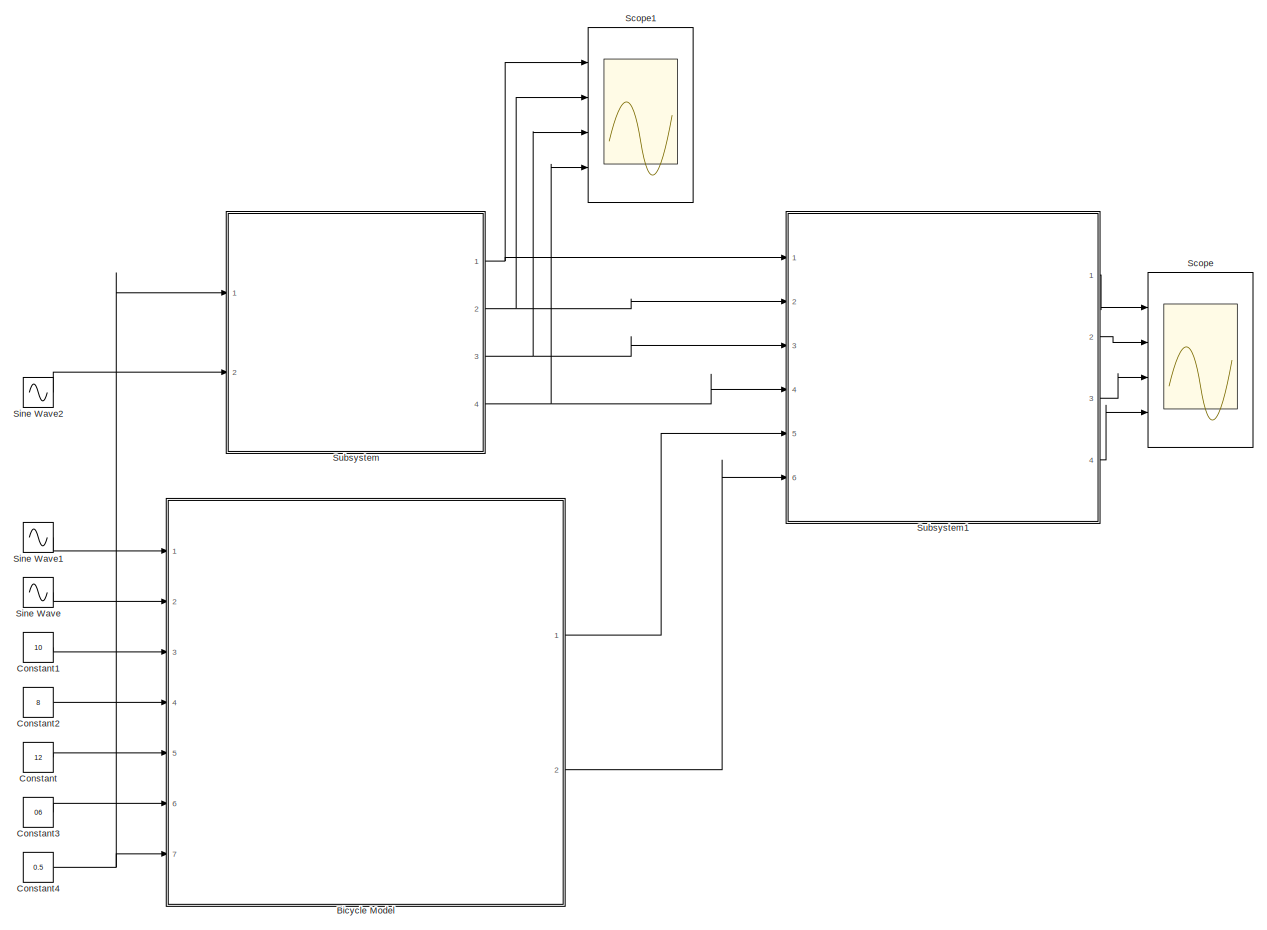
[diagram: root canvas - part 1/1, most of the canvas]
MODEL slx_4cc583ce4cd1
KIND model
CONFIG AbsTol = auto
CONFIG FixedStep = 0.001
CONFIG MaxStep = auto
CONFIG MinStep = auto
CONFIG RelTol = 1e-3
CONFIG SampleTimeConstraint = Unconstrained
CONFIG Solver = FixedStepAuto
CONFIG SolverMode = Auto
CONFIG SolverName = FixedStepAuto
CONFIG StartTime = 0.0
CONFIG StopTime = 1
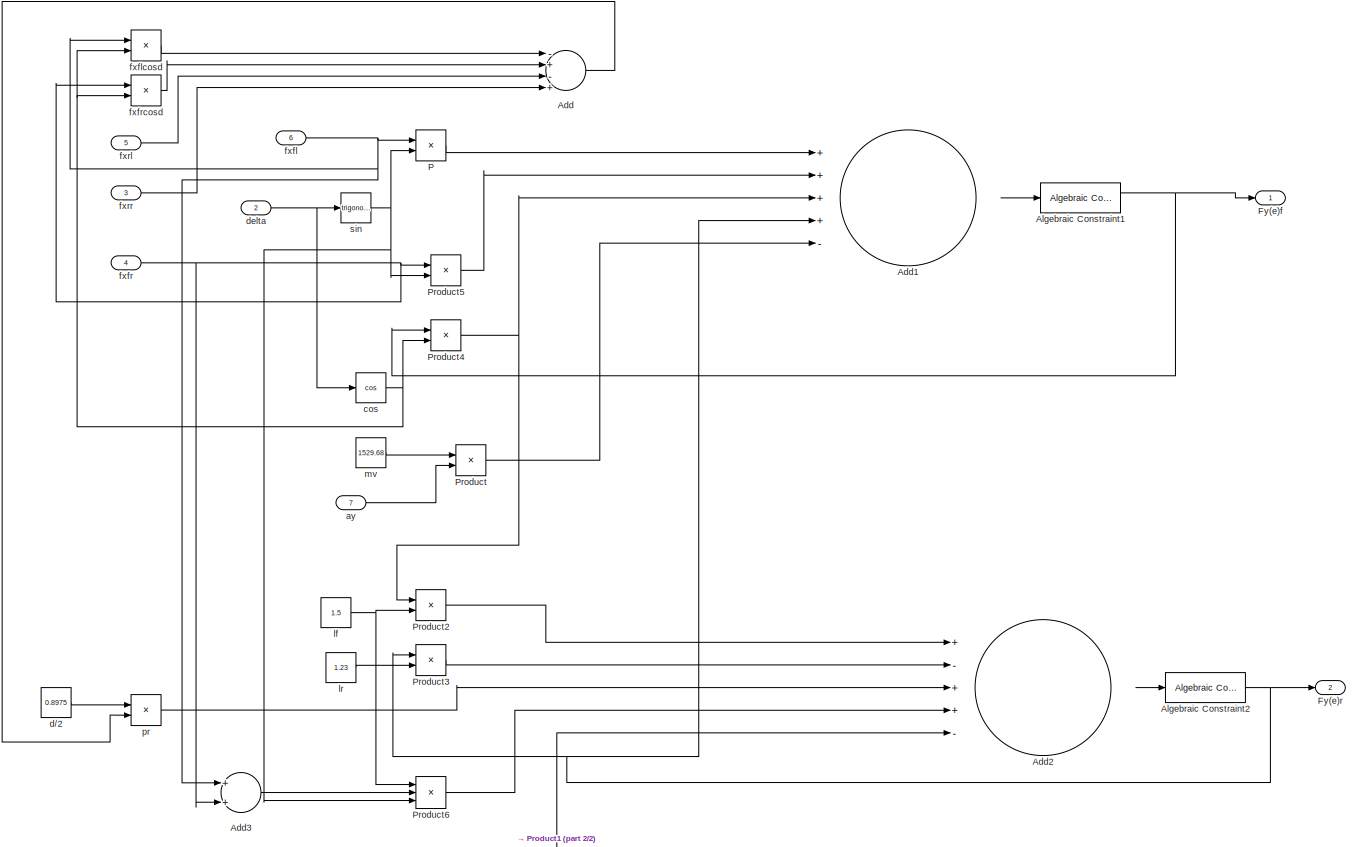
[diagram: Bicycle Model - part 1/2, most of the canvas]
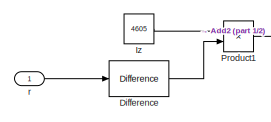
[diagram: Bicycle Model - part 2/2, bottom left region]
BLOCK [SubSystem] Bicycle Model
  Ports = [7, 2]
  RequestExecContextInheritance = off
  Variant = off
BLOCK [Sum] Bicycle Model/Add
  InputSameDT = off
  Inputs = -+-+
  OutDataTypeStr = Inherit: Inherit via internal rule
  Ports = [4, 1]
  SaturateOnIntegerOverflow = off
BLOCK [Sum] Bicycle Model/Add1
  InputSameDT = off
  Inputs = ++++-
  OutDataTypeStr = Inherit: Inherit via internal rule
  Ports = [5, 1]
  SaturateOnIntegerOverflow = off
BLOCK [Sum] Bicycle Model/Add2
  InputSameDT = off
  Inputs = +-++-
  OutDataTypeStr = Inherit: Inherit via internal rule
  Ports = [5, 1]
  SaturateOnIntegerOverflow = off
BLOCK [Sum] Bicycle Model/Add3
  InputSameDT = off
  OutDataTypeStr = Inherit: Inherit via internal rule
  Ports = [2, 1]
  SaturateOnIntegerOverflow = off
BLOCK [Reference] Bicycle Model/Algebraic Constraint1  REF=simulink/Math
Operations/Algebraic Constraint
  Ports = [1, 1]
  SourceBlock = simulink/Math\nOperations/Algebraic Constraint
  SourceType = Algebraic Constraint
BLOCK [Reference] Bicycle Model/Algebraic Constraint2  REF=simulink/Math
Operations/Algebraic Constraint
  Ports = [1, 1]
  SourceBlock = simulink/Math\nOperations/Algebraic Constraint
  SourceType = Algebraic Constraint
BLOCK [Reference] Bicycle Model/Difference  REF=simulink/Discrete/Difference
  Ports = [1, 1]
  SourceBlock = simulink/Discrete/Difference
  SourceType = Difference
BLOCK [Outport] Bicycle Model/Fy(e)f
  IconDisplay = Port number
BLOCK [Outport] Bicycle Model/Fy(e)r
  IconDisplay = Port number
  Port = 2
BLOCK [Constant] Bicycle Model/Iz
  Value = 4605
BLOCK [Product] Bicycle Model/P
  InputSameDT = off
  OutDataTypeStr = Inherit: Inherit via internal rule
  Ports = [2, 1]
  RndMeth = Floor
  SaturateOnIntegerOverflow = off
BLOCK [Product] Bicycle Model/Product
  InputSameDT = off
  OutDataTypeStr = Inherit: Inherit via internal rule
  Ports = [2, 1]
  RndMeth = Floor
  SaturateOnIntegerOverflow = off
BLOCK [Product] Bicycle Model/Product1
  InputSameDT = off
  OutDataTypeStr = Inherit: Inherit via internal rule
  Ports = [2, 1]
  RndMeth = Floor
  SaturateOnIntegerOverflow = off
BLOCK [Product] Bicycle Model/Product2
  InputSameDT = off
  OutDataTypeStr = Inherit: Inherit via internal rule
  Ports = [2, 1]
  RndMeth = Floor
  SaturateOnIntegerOverflow = off
BLOCK [Product] Bicycle Model/Product3
  InputSameDT = off
  OutDataTypeStr = Inherit: Inherit via internal rule
  Ports = [2, 1]
  RndMeth = Floor
  SaturateOnIntegerOverflow = off
BLOCK [Product] Bicycle Model/Product4
  InputSameDT = off
  OutDataTypeStr = Inherit: Inherit via internal rule
  Ports = [2, 1]
  RndMeth = Floor
  SaturateOnIntegerOverflow = off
BLOCK [Product] Bicycle Model/Product5
  InputSameDT = off
  OutDataTypeStr = Inherit: Inherit via internal rule
  Ports = [2, 1]
  RndMeth = Floor
  SaturateOnIntegerOverflow = off
BLOCK [Product] Bicycle Model/Product6
  InputSameDT = off
  Inputs = 3
  OutDataTypeStr = Inherit: Inherit via internal rule
  Ports = [3, 1]
  RndMeth = Floor
  SaturateOnIntegerOverflow = off
BLOCK [Inport] Bicycle Model/ay
  IconDisplay = Port number
  Port = 7
BLOCK [Trigonometry] Bicycle Model/cos
  Operator = cos
  Ports = [1, 1]
BLOCK [Constant] Bicycle Model/d//2
  Value = 0.8975
BLOCK [Inport] Bicycle Model/delta
  IconDisplay = Port number
  Port = 2
BLOCK [Inport] Bicycle Model/fxfl
  IconDisplay = Port number
  Port = 6
BLOCK [Product] Bicycle Model/fxflcosd
  InputSameDT = off
  OutDataTypeStr = Inherit: Inherit via internal rule
  Ports = [2, 1]
  RndMeth = Floor
  SaturateOnIntegerOverflow = off
BLOCK [Inport] Bicycle Model/fxfr
  IconDisplay = Port number
  Port = 4
BLOCK [Product] Bicycle Model/fxfrcosd
  InputSameDT = off
  OutDataTypeStr = Inherit: Inherit via internal rule
  Ports = [2, 1]
  RndMeth = Floor
  SaturateOnIntegerOverflow = off
BLOCK [Inport] Bicycle Model/fxrl
  IconDisplay = Port number
  Port = 5
BLOCK [Inport] Bicycle Model/fxrr
  IconDisplay = Port number
  Port = 3
BLOCK [Constant] Bicycle Model/lf
  Value = 1.5
BLOCK [Constant] Bicycle Model/lr
  Value = 1.23
BLOCK [Constant] Bicycle Model/mv
  Value = 1529.68
BLOCK [Product] Bicycle Model/pr
  InputSameDT = off
  OutDataTypeStr = Inherit: Inherit via internal rule
  Ports = [2, 1]
  RndMeth = Floor
  SaturateOnIntegerOverflow = off
BLOCK [Inport] Bicycle Model/r
  IconDisplay = Port number
BLOCK [Trigonometry] Bicycle Model/sin
  Ports = [1, 1]
BLOCK [Constant] Constant
  Value = 12
BLOCK [Constant] Constant1
  Value = 10
BLOCK [Constant] Constant2
  Value = 8
BLOCK [Constant] Constant3
  Value = 06
BLOCK [Constant] Constant4
  Value = 0.5
BLOCK [Scope] Scope
  NumInputPorts = 4
  Ports = [4]
  ScopeSpecificationString = Simulink.scopes.TimeScopeBlockCfg('CurrentConfiguration', extmgr.ConfigurationSet(extmgr.Configuration('Core','General UI',true),extmgr.Configuration('Core','Source UI',true),extmgr.Configuration('Sources','WiredSimulink',true),extmgr.Configuration('Visuals','Time Domain',true,'SerializedDisplays',{struct('MinYLimReal','115.67749','MaxYLimReal','378.56074','YLabelReal','','MinYLimMag','115.67749',...<+1391ch>
BLOCK [Scope] Scope1
  NumInputPorts = 4
  Ports = [4]
  ScopeSpecificationString = Simulink.scopes.TimeScopeBlockCfg('CurrentConfiguration', extmgr.ConfigurationSet(extmgr.Configuration('Core','General UI',true),extmgr.Configuration('Core','Source UI',true),extmgr.Configuration('Sources','WiredSimulink',true,'DataLoggingVariableName','ScopeData1'),extmgr.Configuration('Visuals','Time Domain',true,'SerializedDisplays',{struct('MinYLimReal','1738.42686','MaxYLimReal','6000.22079',...<+1434ch>
BLOCK [Sin] Sine Wave
  Frequency = 2
  Ports = [0, 1]
BLOCK [Sin] Sine Wave1
  Frequency = 4
  Ports = [0, 1]
BLOCK [Sin] Sine Wave2
  Frequency = 5
  Ports = [0, 1]
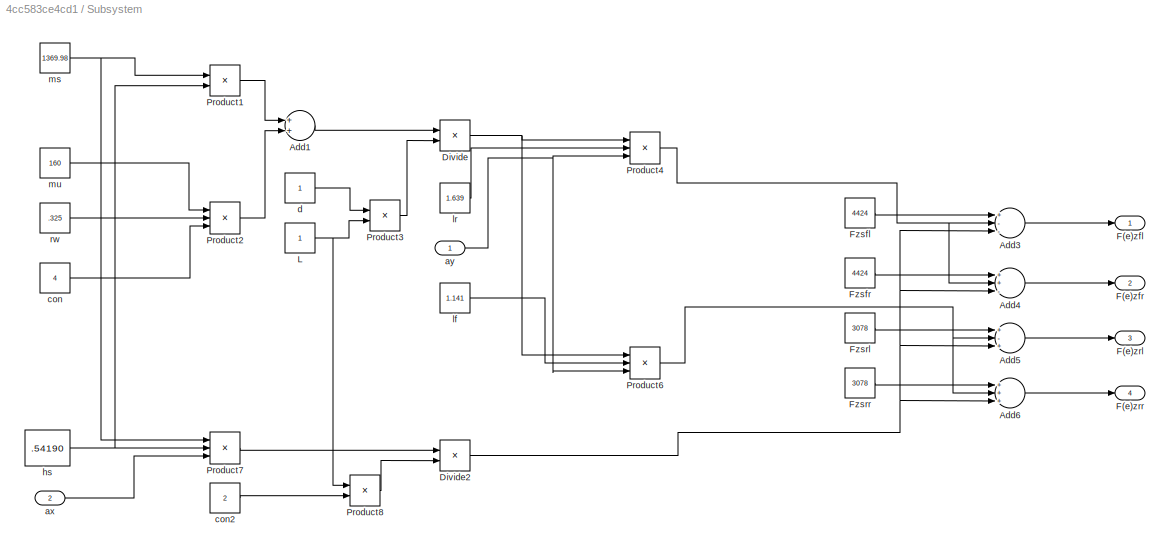
BLOCK [SubSystem] Subsystem
  Ports = [2, 4]
  RequestExecContextInheritance = off
  Variant = off
BLOCK [Sum] Subsystem/Add1
  InputSameDT = off
  OutDataTypeStr = Inherit: Inherit via internal rule
  Ports = [2, 1]
  SaturateOnIntegerOverflow = off
BLOCK [Sum] Subsystem/Add3
  InputSameDT = off
  Inputs = +--
  OutDataTypeStr = Inherit: Inherit via internal rule
  Ports = [3, 1]
  SaturateOnIntegerOverflow = off
BLOCK [Sum] Subsystem/Add4
  InputSameDT = off
  Inputs = ++-
  OutDataTypeStr = Inherit: Inherit via internal rule
  Ports = [3, 1]
  SaturateOnIntegerOverflow = off
BLOCK [Sum] Subsystem/Add5
  InputSameDT = off
  Inputs = +-+
  OutDataTypeStr = Inherit: Inherit via internal rule
  Ports = [3, 1]
  SaturateOnIntegerOverflow = off
BLOCK [Sum] Subsystem/Add6
  InputSameDT = off
  Inputs = +++
  OutDataTypeStr = Inherit: Inherit via internal rule
  Ports = [3, 1]
  SaturateOnIntegerOverflow = off
BLOCK [Product] Subsystem/Divide
  InputSameDT = off
  Inputs = */
  OutDataTypeStr = Inherit: Inherit via internal rule
  Ports = [2, 1]
  RndMeth = Floor
  SaturateOnIntegerOverflow = off
BLOCK [Product] Subsystem/Divide2
  InputSameDT = off
  Inputs = */
  OutDataTypeStr = Inherit: Inherit via internal rule
  Ports = [2, 1]
  RndMeth = Floor
  SaturateOnIntegerOverflow = off
BLOCK [Outport] Subsystem/F(e)zfl
  IconDisplay = Port number
BLOCK [Outport] Subsystem/F(e)zfr
  IconDisplay = Port number
  Port = 2
BLOCK [Outport] Subsystem/F(e)zrl
  IconDisplay = Port number
  Port = 3
BLOCK [Outport] Subsystem/F(e)zrr
  IconDisplay = Port number
  Port = 4
BLOCK [Constant] Subsystem/Fzsfl
  Value = 4424
BLOCK [Constant] Subsystem/Fzsfr
  Value = 4424
BLOCK [Constant] Subsystem/Fzsrl
  Value = 3078
BLOCK [Constant] Subsystem/Fzsrr
  Value = 3078
BLOCK [Constant] Subsystem/L
BLOCK [Product] Subsystem/Product1
  InputSameDT = off
  OutDataTypeStr = Inherit: Inherit via internal rule
  Ports = [2, 1]
  RndMeth = Floor
  SaturateOnIntegerOverflow = off
BLOCK [Product] Subsystem/Product2
  InputSameDT = off
  Inputs = 3
  OutDataTypeStr = Inherit: Inherit via internal rule
  Ports = [3, 1]
  RndMeth = Floor
  SaturateOnIntegerOverflow = off
BLOCK [Product] Subsystem/Product3
  InputSameDT = off
  OutDataTypeStr = Inherit: Inherit via internal rule
  Ports = [2, 1]
  RndMeth = Floor
  SaturateOnIntegerOverflow = off
BLOCK [Product] Subsystem/Product4
  InputSameDT = off
  Inputs = 3
  OutDataTypeStr = Inherit: Inherit via internal rule
  Ports = [3, 1]
  RndMeth = Floor
  SaturateOnIntegerOverflow = off
BLOCK [Product] Subsystem/Product6
  InputSameDT = off
  Inputs = 3
  OutDataTypeStr = Inherit: Inherit via internal rule
  Ports = [3, 1]
  RndMeth = Floor
  SaturateOnIntegerOverflow = off
BLOCK [Product] Subsystem/Product7
  InputSameDT = off
  Inputs = 3
  OutDataTypeStr = Inherit: Inherit via internal rule
  Ports = [3, 1]
  RndMeth = Floor
  SaturateOnIntegerOverflow = off
BLOCK [Product] Subsystem/Product8
  InputSameDT = off
  OutDataTypeStr = Inherit: Inherit via internal rule
  Ports = [2, 1]
  RndMeth = Floor
  SaturateOnIntegerOverflow = off
BLOCK [Inport] Subsystem/ax
  IconDisplay = Port number
  Port = 2
BLOCK [Inport] Subsystem/ay
  IconDisplay = Port number
BLOCK [Constant] Subsystem/con
  Value = 4
BLOCK [Constant] Subsystem/con2
  Value = 2
BLOCK [Constant] Subsystem/d
BLOCK [Constant] Subsystem/hs
  Value = .54190
BLOCK [Constant] Subsystem/lf
  Value = 1.141
BLOCK [Constant] Subsystem/lr
  Value = 1.639
BLOCK [Constant] Subsystem/ms
  Value = 1369.98
BLOCK [Constant] Subsystem/mu
  Value = 160
BLOCK [Constant] Subsystem/rw
  Value = .325
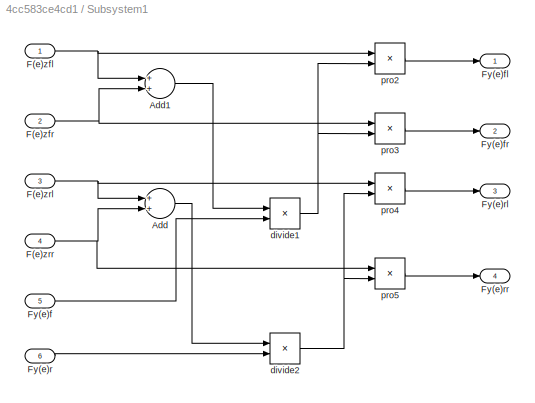
BLOCK [SubSystem] Subsystem1
  Ports = [6, 4]
  RequestExecContextInheritance = off
  Variant = off
BLOCK [Sum] Subsystem1/Add
  InputSameDT = off
  OutDataTypeStr = Inherit: Inherit via internal rule
  Ports = [2, 1]
  SaturateOnIntegerOverflow = off
BLOCK [Sum] Subsystem1/Add1
  InputSameDT = off
  OutDataTypeStr = Inherit: Inherit via internal rule
  Ports = [2, 1]
  SaturateOnIntegerOverflow = off
BLOCK [Inport] Subsystem1/F(e)zfl
  IconDisplay = Port number
BLOCK [Inport] Subsystem1/F(e)zfr
  IconDisplay = Port number
  Port = 2
BLOCK [Inport] Subsystem1/F(e)zrl
  IconDisplay = Port number
  Port = 3
BLOCK [Inport] Subsystem1/F(e)zrr
  IconDisplay = Port number
  Port = 4
BLOCK [Inport] Subsystem1/Fy(e)f
  IconDisplay = Port number
  Port = 5
BLOCK [Outport] Subsystem1/Fy(e)fl
  IconDisplay = Port number
BLOCK [Outport] Subsystem1/Fy(e)fr
  IconDisplay = Port number
  Port = 2
BLOCK [Inport] Subsystem1/Fy(e)r
  IconDisplay = Port number
  Port = 6
BLOCK [Outport] Subsystem1/Fy(e)rl
  IconDisplay = Port number
  Port = 3
BLOCK [Outport] Subsystem1/Fy(e)rr
  IconDisplay = Port number
  Port = 4
BLOCK [Product] Subsystem1/divide1
  InputSameDT = off
  Inputs = /*
  OutDataTypeStr = Inherit: Inherit via internal rule
  Ports = [2, 1]
  RndMeth = Floor
  SaturateOnIntegerOverflow = off
BLOCK [Product] Subsystem1/divide2
  InputSameDT = off
  Inputs = /*
  OutDataTypeStr = Inherit: Inherit via internal rule
  Ports = [2, 1]
  RndMeth = Floor
  SaturateOnIntegerOverflow = off
BLOCK [Product] Subsystem1/pro2
  InputSameDT = off
  Inputs = **
  OutDataTypeStr = Inherit: Inherit via internal rule
  Ports = [2, 1]
  RndMeth = Floor
  SaturateOnIntegerOverflow = off
BLOCK [Product] Subsystem1/pro3
  InputSameDT = off
  Inputs = **
  OutDataTypeStr = Inherit: Inherit via internal rule
  Ports = [2, 1]
  RndMeth = Floor
  SaturateOnIntegerOverflow = off
BLOCK [Product] Subsystem1/pro4
  InputSameDT = off
  Inputs = **
  OutDataTypeStr = Inherit: Inherit via internal rule
  Ports = [2, 1]
  RndMeth = Floor
  SaturateOnIntegerOverflow = off
BLOCK [Product] Subsystem1/pro5
  InputSameDT = off
  Inputs = **
  OutDataTypeStr = Inherit: Inherit via internal rule
  Ports = [2, 1]
  RndMeth = Floor
  SaturateOnIntegerOverflow = off
LINE Bicycle Model/Add1:1 -> Bicycle Model/Algebraic Constraint1:1
LINE Bicycle Model/Add2:1 -> Bicycle Model/Algebraic Constraint2:1
LINE Bicycle Model/Add3:1 -> Bicycle Model/Product6:2
LINE Bicycle Model/Add:1 -> Bicycle Model/pr:2
NET Bicycle Model/Algebraic Constraint1:1 -> Bicycle Model/Fy(e)f:1, Bicycle Model/Product4:1
NET Bicycle Model/Algebraic Constraint2:1 -> Bicycle Model/Add1:4, Bicycle Model/Fy(e)r:1, Bicycle Model/Product3:1
LINE Bicycle Model/Difference:1 -> Bicycle Model/Product1:2
LINE Bicycle Model/Iz:1 -> Bicycle Model/Product1:1
LINE Bicycle Model/P:1 -> Bicycle Model/Add1:1
LINE Bicycle Model/Product1:1 -> Bicycle Model/Add2:5
LINE Bicycle Model/Product2:1 -> Bicycle Model/Add2:1
LINE Bicycle Model/Product3:1 -> Bicycle Model/Add2:2
NET Bicycle Model/Product4:1 -> Bicycle Model/Add1:3, Bicycle Model/Product2:1
LINE Bicycle Model/Product5:1 -> Bicycle Model/Add1:2
LINE Bicycle Model/Product6:1 -> Bicycle Model/Add2:4
LINE Bicycle Model/Product:1 -> Bicycle Model/Add1:5
LINE Bicycle Model/ay:1 -> Bicycle Model/Product:2
NET Bicycle Model/cos:1 -> Bicycle Model/Product4:2, Bicycle Model/fxflcosd:2, Bicycle Model/fxfrcosd:2
LINE Bicycle Model/d//2:1 -> Bicycle Model/pr:1
NET Bicycle Model/delta:1 -> Bicycle Model/cos:1, Bicycle Model/sin:1
NET Bicycle Model/fxfl:1 -> Bicycle Model/Add3:1, Bicycle Model/P:1, Bicycle Model/fxflcosd:1
LINE Bicycle Model/fxflcosd:1 -> Bicycle Model/Add:1
NET Bicycle Model/fxfr:1 -> Bicycle Model/Add3:2, Bicycle Model/Product5:1, Bicycle Model/fxfrcosd:1
LINE Bicycle Model/fxfrcosd:1 -> Bicycle Model/Add:2
LINE Bicycle Model/fxrl:1 -> Bicycle Model/Add:3
LINE Bicycle Model/fxrr:1 -> Bicycle Model/Add:4
NET Bicycle Model/lf:1 -> Bicycle Model/Product2:2, Bicycle Model/Product6:1
LINE Bicycle Model/lr:1 -> Bicycle Model/Product3:2
LINE Bicycle Model/mv:1 -> Bicycle Model/Product:1
LINE Bicycle Model/pr:1 -> Bicycle Model/Add2:3
LINE Bicycle Model/r:1 -> Bicycle Model/Difference:1
NET Bicycle Model/sin:1 -> Bicycle Model/P:2, Bicycle Model/Product5:2, Bicycle Model/Product6:3
LINE Bicycle Model:1 -> Subsystem1:5
LINE Bicycle Model:2 -> Subsystem1:6
LINE Constant1:1 -> Bicycle Model:3
LINE Constant2:1 -> Bicycle Model:4
LINE Constant3:1 -> Bicycle Model:6
NET Constant4:1 -> Bicycle Model:7, Subsystem:1
LINE Constant:1 -> Bicycle Model:5
LINE Sine Wave1:1 -> Bicycle Model:1
LINE Sine Wave2:1 -> Subsystem:2
LINE Sine Wave:1 -> Bicycle Model:2
LINE Subsystem/Add1:1 -> Subsystem/Divide:1
LINE Subsystem/Add3:1 -> Subsystem/F(e)zfl:1
LINE Subsystem/Add4:1 -> Subsystem/F(e)zfr:1
LINE Subsystem/Add5:1 -> Subsystem/F(e)zrl:1
LINE Subsystem/Add6:1 -> Subsystem/F(e)zrr:1
NET Subsystem/Divide2:1 -> Subsystem/Add3:3, Subsystem/Add4:3, Subsystem/Add5:3, Subsystem/Add6:3
NET Subsystem/Divide:1 -> Subsystem/Product4:1, Subsystem/Product6:1
LINE Subsystem/Fzsfl:1 -> Subsystem/Add3:1
LINE Subsystem/Fzsfr:1 -> Subsystem/Add4:1
LINE Subsystem/Fzsrl:1 -> Subsystem/Add5:1
LINE Subsystem/Fzsrr:1 -> Subsystem/Add6:1
NET Subsystem/L:1 -> Subsystem/Product3:2, Subsystem/Product8:1
LINE Subsystem/Product1:1 -> Subsystem/Add1:1
LINE Subsystem/Product2:1 -> Subsystem/Add1:2
LINE Subsystem/Product3:1 -> Subsystem/Divide:2
NET Subsystem/Product4:1 -> Subsystem/Add3:2, Subsystem/Add4:2
NET Subsystem/Product6:1 -> Subsystem/Add5:2, Subsystem/Add6:2
LINE Subsystem/Product7:1 -> Subsystem/Divide2:1
LINE Subsystem/Product8:1 -> Subsystem/Divide2:2
LINE Subsystem/ax:1 -> Subsystem/Product7:3
NET Subsystem/ay:1 -> Subsystem/Product4:3, Subsystem/Product6:3
LINE Subsystem/con2:1 -> Subsystem/Product8:2
LINE Subsystem/con:1 -> Subsystem/Product2:3
LINE Subsystem/d:1 -> Subsystem/Product3:1
NET Subsystem/hs:1 -> Subsystem/Product1:2, Subsystem/Product7:2
LINE Subsystem/lf:1 -> Subsystem/Product6:2
LINE Subsystem/lr:1 -> Subsystem/Product4:2
NET Subsystem/ms:1 -> Subsystem/Product1:1, Subsystem/Product7:1
LINE Subsystem/mu:1 -> Subsystem/Product2:1
LINE Subsystem/rw:1 -> Subsystem/Product2:2
LINE Subsystem1/Add1:1 -> Subsystem1/divide1:1
LINE Subsystem1/Add:1 -> Subsystem1/divide2:1
NET Subsystem1/F(e)zfl:1 -> Subsystem1/Add1:1, Subsystem1/pro2:1
NET Subsystem1/F(e)zfr:1 -> Subsystem1/Add1:2, Subsystem1/pro3:1
NET Subsystem1/F(e)zrl:1 -> Subsystem1/Add:1, Subsystem1/pro4:1
NET Subsystem1/F(e)zrr:1 -> Subsystem1/Add:2, Subsystem1/pro5:1
LINE Subsystem1/Fy(e)f:1 -> Subsystem1/divide1:2
LINE Subsystem1/Fy(e)r:1 -> Subsystem1/divide2:2
NET Subsystem1/divide1:1 -> Subsystem1/pro2:2, Subsystem1/pro3:2
NET Subsystem1/divide2:1 -> Subsystem1/pro4:2, Subsystem1/pro5:2
LINE Subsystem1/pro2:1 -> Subsystem1/Fy(e)fl:1
LINE Subsystem1/pro3:1 -> Subsystem1/Fy(e)fr:1
LINE Subsystem1/pro4:1 -> Subsystem1/Fy(e)rl:1
LINE Subsystem1/pro5:1 -> Subsystem1/Fy(e)rr:1
LINE Subsystem1:1 -> Scope:1
LINE Subsystem1:2 -> Scope:2
LINE Subsystem1:3 -> Scope:3
LINE Subsystem1:4 -> Scope:4
NET Subsystem:1 -> Scope1:1, Subsystem1:1
NET Subsystem:2 -> Scope1:2, Subsystem1:2
NET Subsystem:3 -> Scope1:3, Subsystem1:3
NET Subsystem:4 -> Scope1:4, Subsystem1:4
note: NET lines group one-source signal fan-out (src -> all destinations, sorted); 1:1 wires keep LINE
